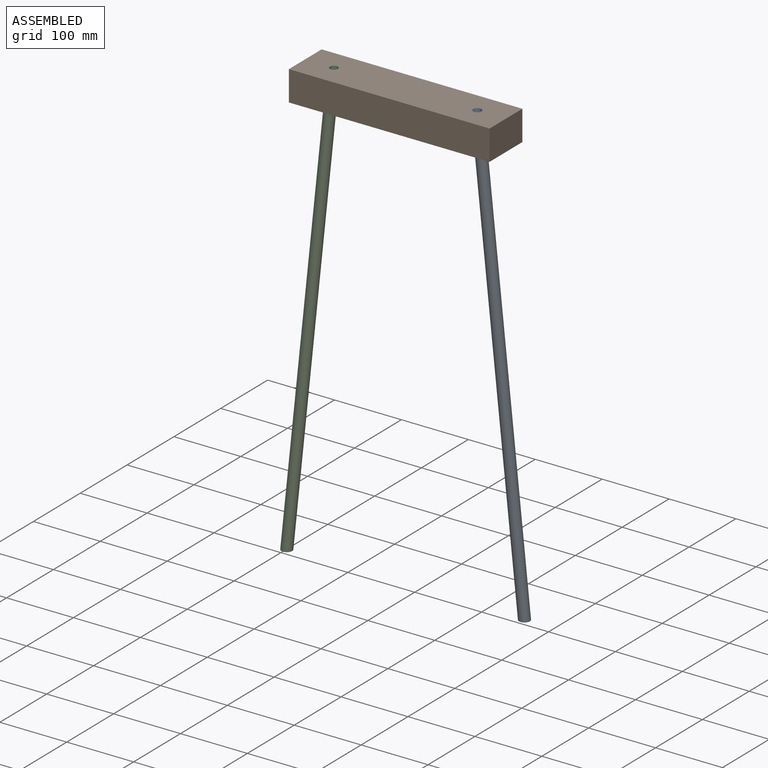
[diagram: assembled view]
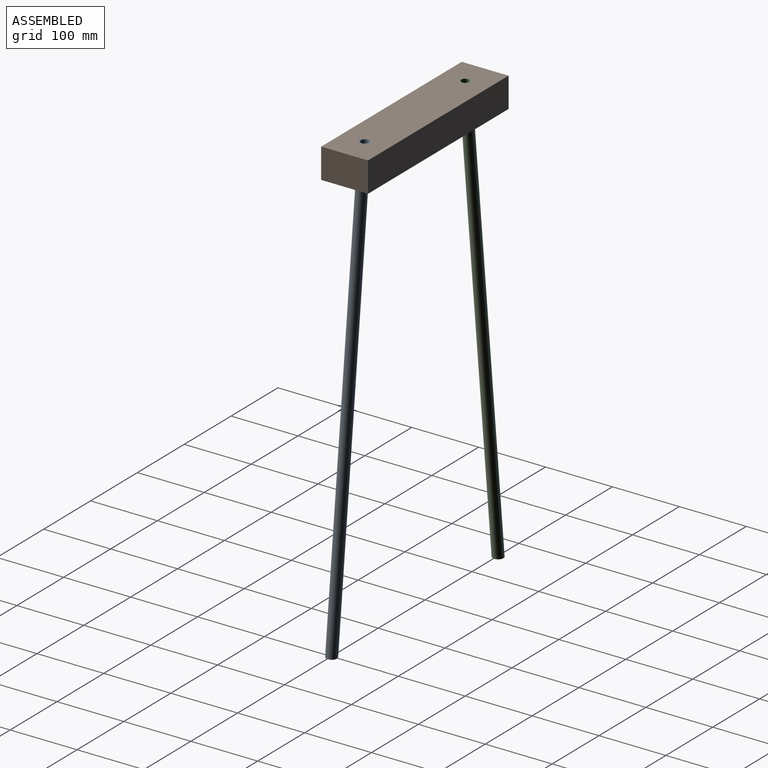
[diagram: assembled view, second angle]
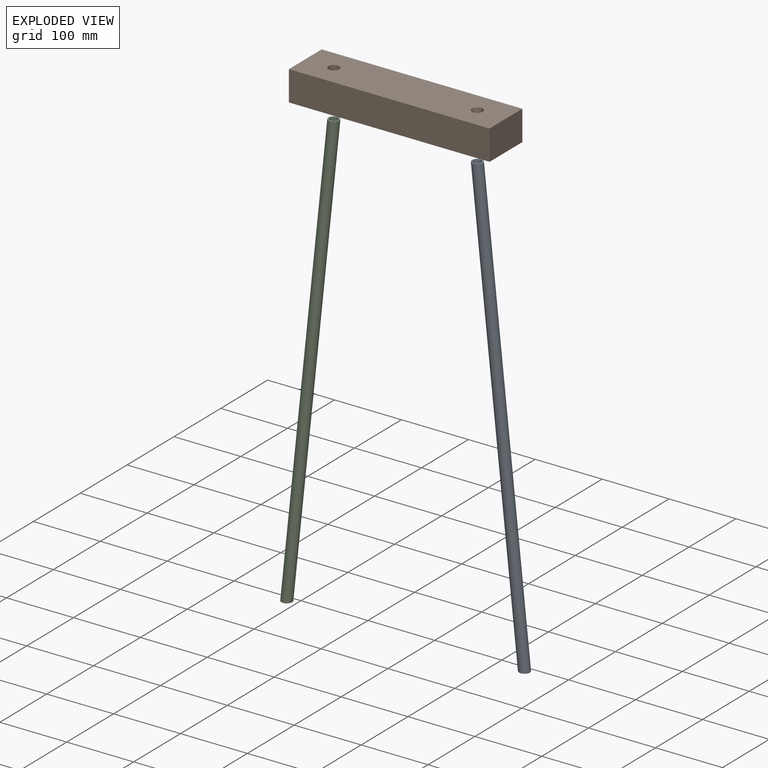
[diagram: exploded view]
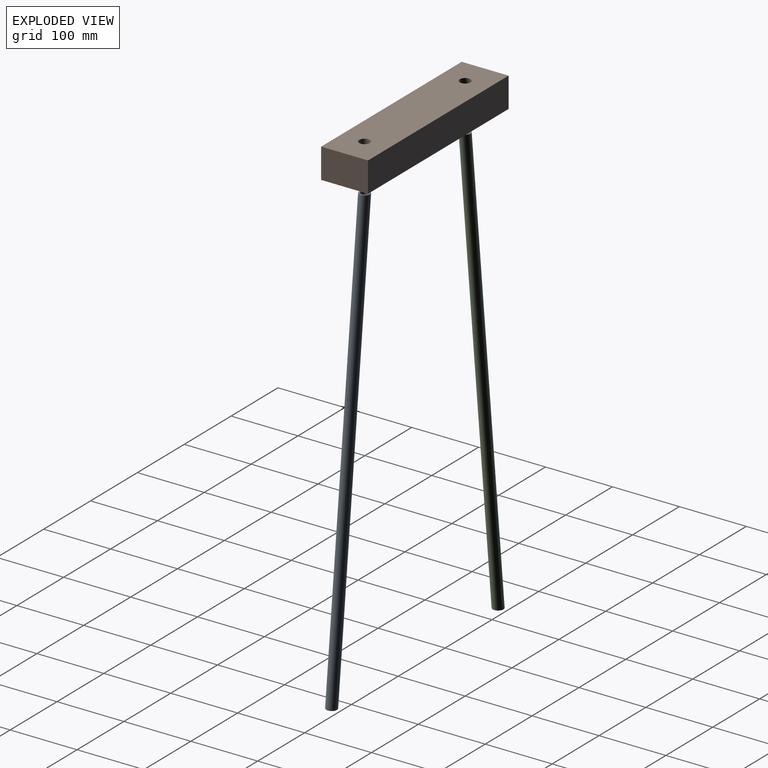
[diagram: exploded view, second angle]
ASSEMBLY  parts=3 mates=2
PART A: 4 faces, bbox 675x16x16 mm
  f0: cylinder r=8mm len=675.01mm, axis (-1,0,0), area 33844.7mm2, adj f1,f2
  f1: plane 16x16mm, normal (0.99,0,0.1), area 88.4mm2, adj f0,f3
  f2: plane 16x16mm, normal (-0.99,0,-0.1), area 88.4mm2, adj f0,f3
  f3: cylinder r=6mm len=674.59mm, axis (-1,0,0), area 25383.5mm2, adj f1,f2
PART B: 8 faces, bbox 300x70x66.3 mm
  f0: plane 300x45mm, normal (0,-1,0), area 13500mm2, adj f1,f3,f4,f5
  f1: plane 70x45mm, normal (1,0,0), area 3150mm2, adj f0,f2,f4,f5
  f2: plane 300x45mm, normal (0,1,0), area 13500mm2, adj f1,f3,f4,f5
  f3: plane 70x45mm, normal (-1,0,0), area 3150mm2, adj f0,f2,f4,f5
  f4: plane 300x70mm, normal (0,0,1), area 20599.2mm2, adj f0,f1,f2,f3,f6,f7
  f5: plane 300x70mm, normal (0,0,-1), area 20597.9mm2, adj f0,f1,f2,f3,f6,f7
  f6: bspline ~66.25x32mm, area 2272.6mm2, adj f4,f5
  f7: bspline ~59.76x32mm, area 2272.6mm2, adj f4,f5
PART C: same geometry as A
PLACE A rot(axis=(-0.67,0,-0.74),180deg) t=(183.8,29.15,-609.7)mm
PLACE B t=(6.06,29.15,15.76)mm
PLACE C rot(axis=(0,-1,0),84deg) t=(-171.67,29.15,-609.7)mm
MATE fastened C.f1 <-> B.f4  axis (0,0,1) through (-101.21,29.15,60.76)mm
MATE fastened A.f1 <-> B.f4  axis (0,0,1) through (113.33,29.15,60.76)mm
